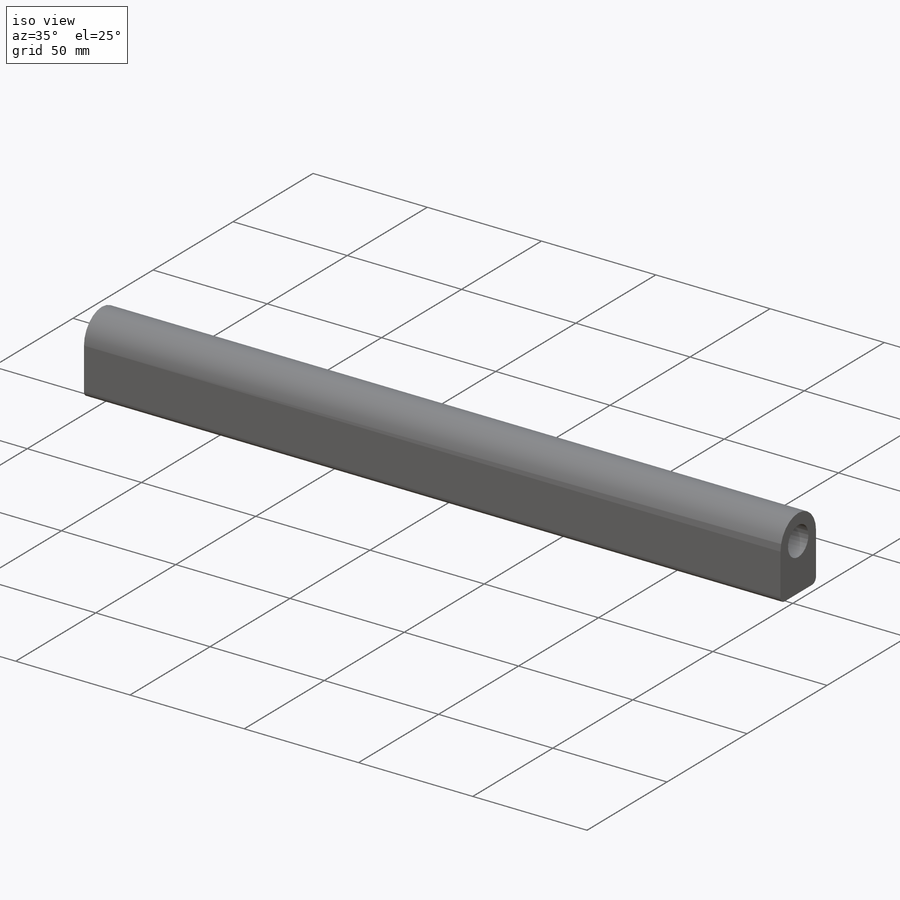
[diagram: iso view]
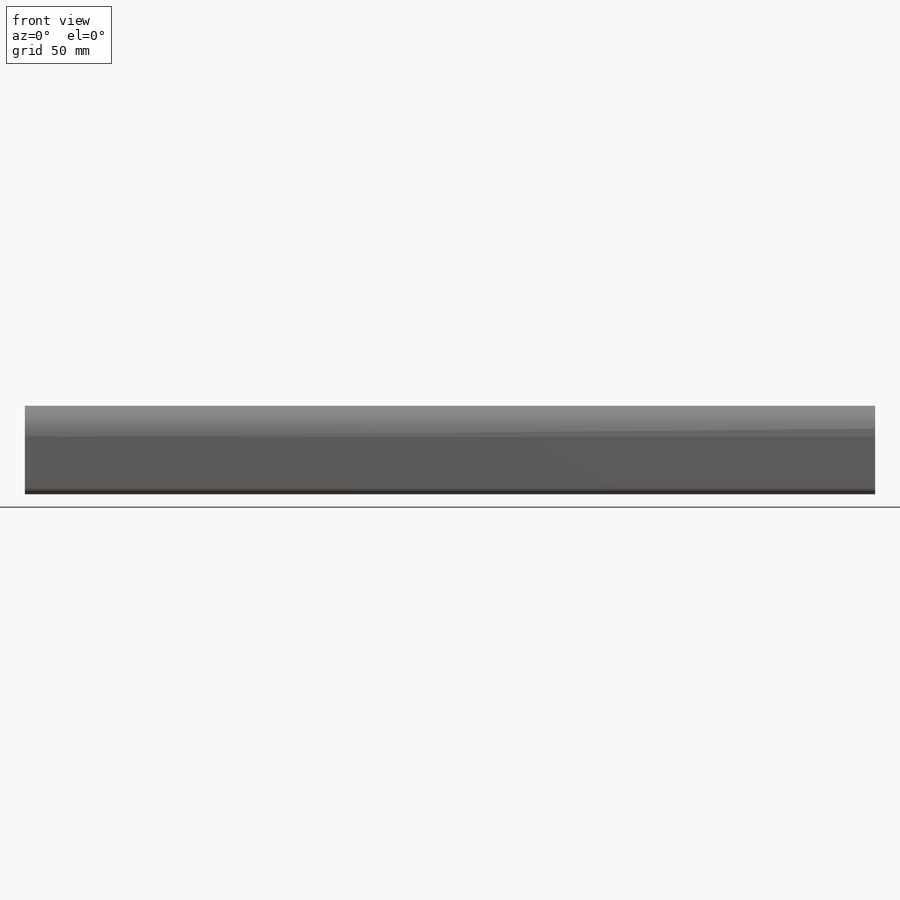
[diagram: front view]
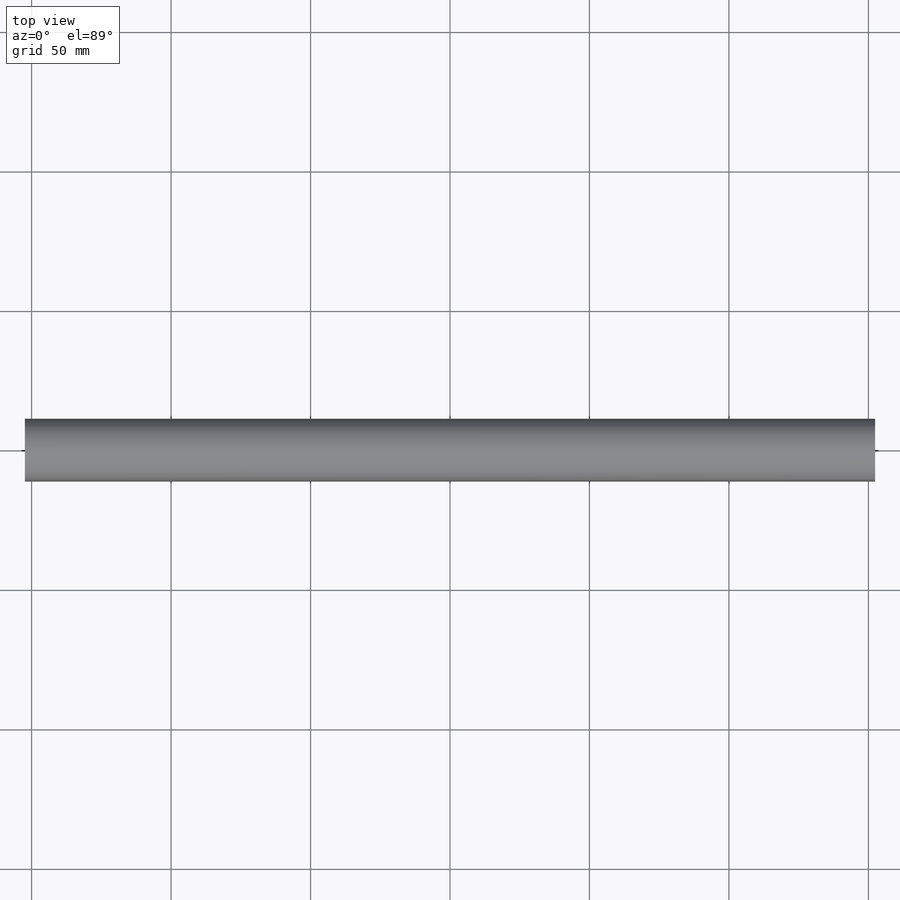
[diagram: top view]
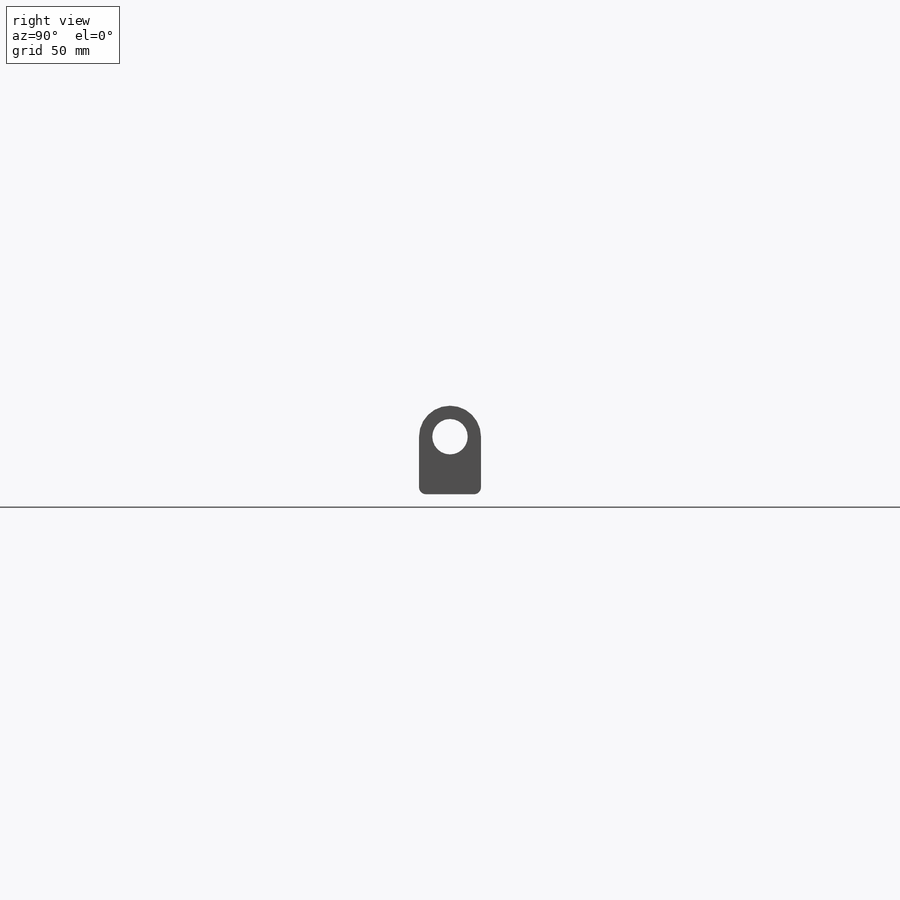
[diagram: right view]
SOLIDWORKS PART (.sldprt)
format: sldprt  version: not decoded by parser v0  size: 212,480 bytes
history: native  units: mm
features: sketch x3, material x1, extrude x1, hole x1 (+16 scaffold rows collapsed)
feature tree (22):
  scaffold x16  (default folders/planes/origin — collapsed)
  material  "6061 Alloy"
  sketch  "Sketch1"  dims[D1=12.7mm D4=2.54mm D2=22.225mm D3=31.75mm]
  extrude  "Extrude1"  Depth=152.4mm
  hole  "Ø13.0 (13) Diameter Hole1"  Diameter=13mm Depth=20.6365mm
  sketch  "3DSketch1"  dims[c1.D1=~67.201805mm c1.D2=75.0mm c2.D2=~79.528755mm c2.D3=75.0mm c3.D3=~88.340745mm c3.D4=75.0mm]
  sketch  "Sketch2"  dims[hole-wizard template sketch: 46 standard entries collapsed; hole parameters kept: c15.Hole Dia.=13.0mm c15.Hole Depth=20.6365mm c15.D3=~14.816244mm c15.Drill Angle=118.0deg]
decode coverage: 5 of 5 modeling features carry decoded parameters
note: ~ marks probable driven/reference dimensions
note: suppression state not decoded; provenance and decode notes live in map.json
